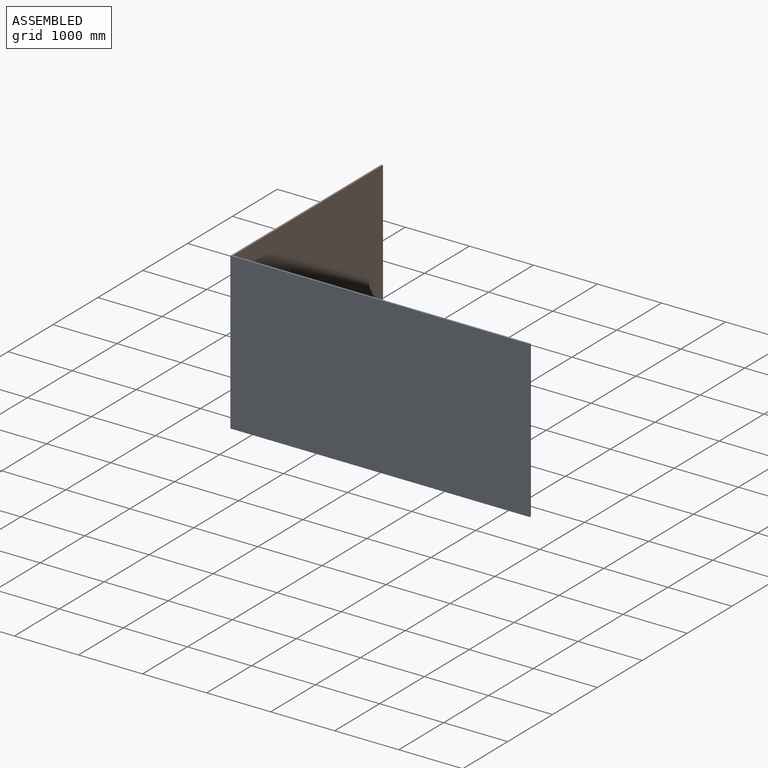
[diagram: assembled view]
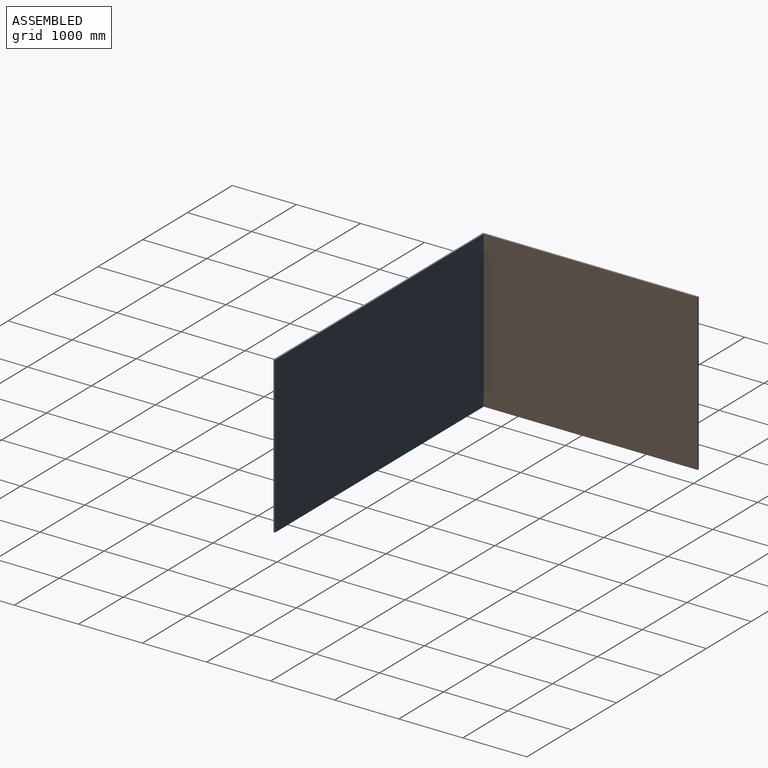
[diagram: assembled view, second angle]
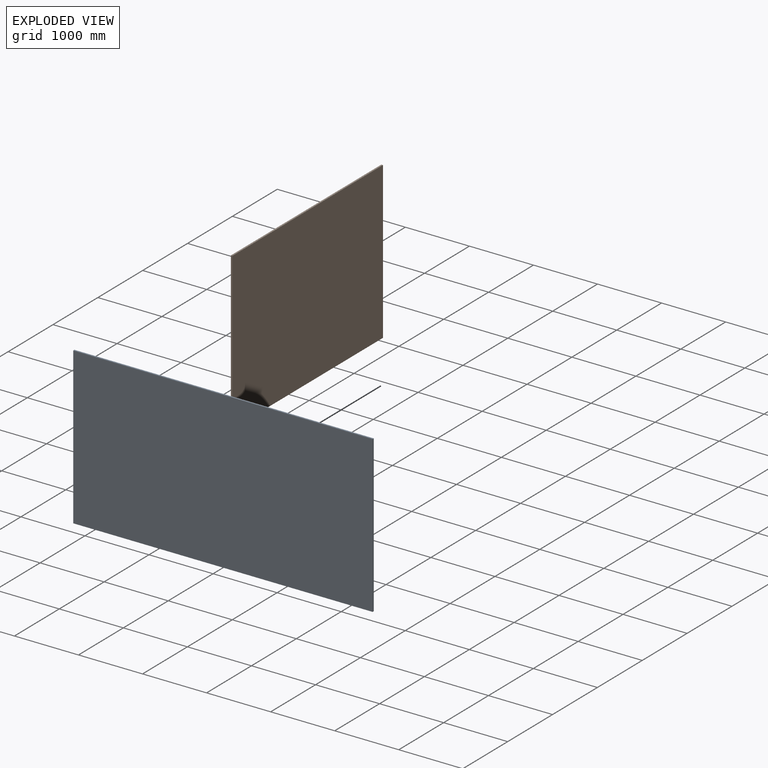
[diagram: exploded view]
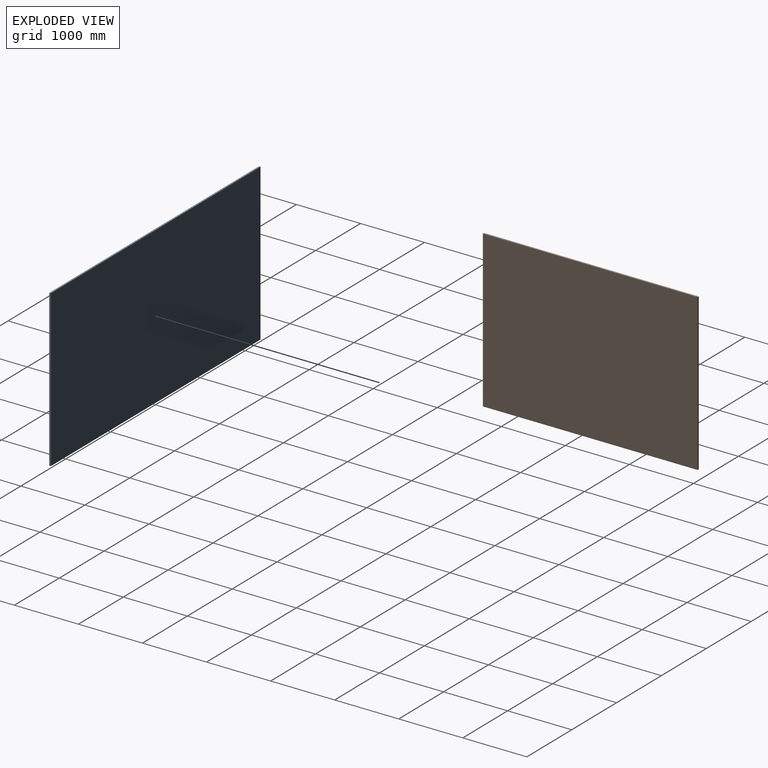
[diagram: exploded view, second angle]
ASSEMBLY  parts=2 mates=4
PART A: 6 faces, bbox 4673.6x25.4x2438.4 mm
  f0: plane 2438.4x25.4mm, normal (1,0,0), area 61935.4mm2, adj f1,f3,f4,f5
  f1: plane 4673.6x25.4mm, normal (0,0,1), area 118709.4mm2, adj f0,f2,f4,f5
  f2: plane 2438.4x25.4mm, normal (-1,0,0), area 61935.4mm2, adj f1,f3,f4,f5
  f3: plane 4673.6x25.4mm, normal (0,0,-1), area 118709.4mm2, adj f0,f2,f4,f5
  f4: plane 4673.6x2438.4mm, normal (0,-1,0), area 11396106.2mm2, adj f0,f1,f2,f3
  f5: plane 4673.6x2438.4mm, normal (0,1,0), area 11396106.2mm2, adj f0,f1,f2,f3
PART B: 6 faces, bbox 3352.8x25.4x2438.4 mm
  f0: plane 2438.4x25.4mm, normal (1,0,0), area 61935.4mm2, adj f1,f3,f4,f5
  f1: plane 3352.8x25.4mm, normal (0,0,1), area 85161.1mm2, adj f0,f2,f4,f5
  f2: plane 2438.4x25.4mm, normal (-1,0,0), area 61935.4mm2, adj f1,f3,f4,f5
  f3: plane 3352.8x25.4mm, normal (0,0,-1), area 85161.1mm2, adj f0,f2,f4,f5
  f4: plane 3352.8x2438.4mm, normal (0,-1,0), area 8175467.5mm2, adj f0,f1,f2,f3
  f5: plane 3352.8x2438.4mm, normal (0,1,0), area 8175467.5mm2, adj f0,f1,f2,f3
PLACE A t=(113.9,-1413.35,122.23)mm
PLACE B rot(axis=(0,0,-1),90deg) t=(-2197.5,250.35,122.23)mm
MATE planar B.f0 <-> A.f4  axis (0,-1,0) through (-2210.2,-1426.05,122.23)mm
MATE planar B.f4 <-> A.f2  axis (-1,0,0) through (-2222.9,-1426.05,122.23)mm
MATE planar B.f1 <-> A.f1  axis (0,0,1) through (-2222.9,-1426.05,1341.43)mm
MATE planar A.f5 <-> B.f0  axis (0,1,0) through (113.9,-1413.35,122.23)mm
